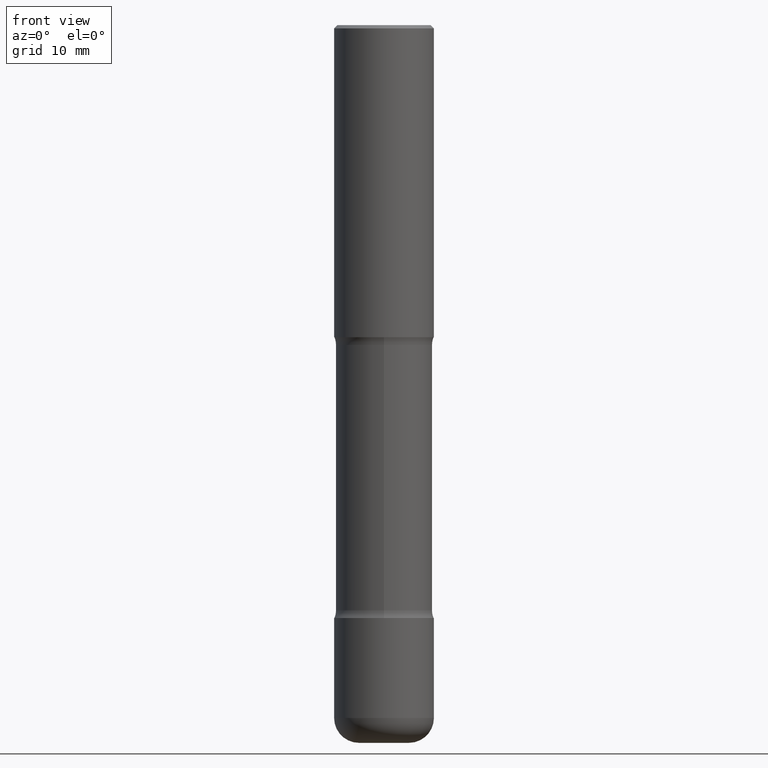
[diagram: clean part render]
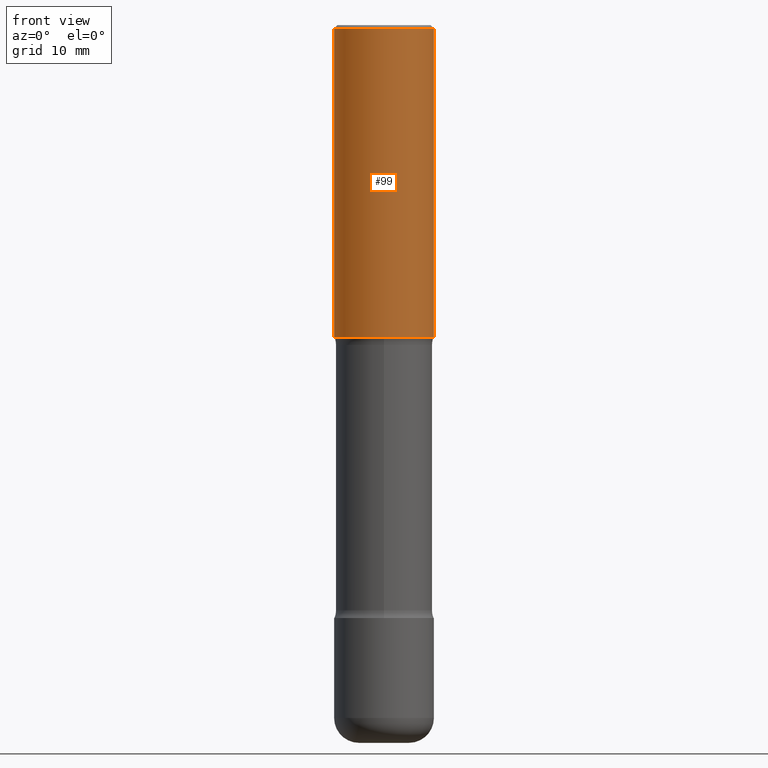
[diagram: same view with one face highlighted and labeled with its STEP entity id]
A machine part, front view. The second image highlights one B-rep face of the part: STEP entity #99.
In plain terms, the highlighted cylindrical surface (partial cylindrical patch) has radius 7.9997 mm, axis along (-0, 0, 1).
Its self-contained STEP definition (entity closure, byte-faithful):
#30 = ORIENTED_EDGE ( 'NONE', *, *, #434, .F. ) ;
#38 = DIRECTION ( 'NONE',  ( 1.000000000000000000, -6.982962677686265922E-15, 0.000000000000000000 ) ) ;
#72 = LINE ( 'NONE', #155, #149 ) ;
#86 = CARTESIAN_POINT ( 'NONE',  ( 0.3149500000000000077, -2.199284095337289871E-15, 1.535751875536930130E-29 ) ) ;
#87 = AXIS2_PLACEMENT_3D ( 'NONE', #423, #337, #476 ) ;
#91 = CARTESIAN_POINT ( 'NONE',  ( 0.3149500000000001743, -9.072265110850023156E-15, -1.968500000000000139 ) ) ;
#99 = ADVANCED_FACE ( 'NONE', ( #545 ), #508, .T. ) ;
#149 = VECTOR ( 'NONE', #201, 39.37007874015748143 ) ;
#155 = CARTESIAN_POINT ( 'NONE',  ( -0.3149500000000000077, 2.237854346276435590E-15, -1.549218606675782676E-29 ) ) ;
#173 = EDGE_LOOP ( 'NONE', ( #352, #262, #459, #30 ) ) ;
#190 = DIRECTION ( 'NONE',  ( -2.445468806185136597E-29, 3.491481338843145583E-15, 1.000000000000000000 ) ) ;
#201 = DIRECTION ( 'NONE',  ( -2.445468806185136877E-29, 3.491481338843145188E-15, 1.000000000000000000 ) ) ;
#250 = AXIS2_PLACEMENT_3D ( 'NONE', #489, #190, #364 ) ;
#253 = VERTEX_POINT ( 'NONE', #91 ) ;
#262 = ORIENTED_EDGE ( 'NONE', *, *, #270, .T. ) ;
#269 = DIRECTION ( 'NONE',  ( -2.445468806185136877E-29, 3.491481338843145188E-15, 1.000000000000000000 ) ) ;
#270 = EDGE_CURVE ( 'NONE', #503, #253, #353, .T. ) ;
#284 = CARTESIAN_POINT ( 'NONE',  ( 0.3149499999999998967, -2.230543471175006266E-15, -0.02000000000000006981 ) ) ;
#297 = VERTEX_POINT ( 'NONE', #284 ) ;
#321 = CIRCLE ( 'NONE', #513, 0.3149499999999998967 ) ;
#331 = VECTOR ( 'NONE', #269, 39.37007874015748143 ) ;
#333 = VERTEX_POINT ( 'NONE', #419 ) ;
#337 = DIRECTION ( 'NONE',  ( -2.445468806185136597E-29, 3.491481338843145583E-15, 1.000000000000000000 ) ) ;
#340 = CARTESIAN_POINT ( 'NONE',  ( 4.890937612370289799E-31, -6.982962677686315028E-17, -0.02000000000000006981 ) ) ;
#352 = ORIENTED_EDGE ( 'NONE', *, *, #401, .F. ) ;
#353 = CIRCLE ( 'NONE', #250, 0.3149500000000001743 ) ;
#364 = DIRECTION ( 'NONE',  ( 1.000000000000000000, -6.982962677686269866E-15, 0.000000000000000000 ) ) ;
#383 = LINE ( 'NONE', #86, #331 ) ;
#401 = EDGE_CURVE ( 'NONE', #503, #333, #72, .T. ) ;
#419 = CARTESIAN_POINT ( 'NONE',  ( -0.3149499999999998967, 2.129454468560425784E-15, -0.02000000000000006981 ) ) ;
#423 = CARTESIAN_POINT ( 'NONE',  ( 0.000000000000000000, 0.000000000000000000, 0.000000000000000000 ) ) ;
#434 = EDGE_CURVE ( 'NONE', #333, #297, #321, .T. ) ;
#459 = ORIENTED_EDGE ( 'NONE', *, *, #470, .T. ) ;
#470 = EDGE_CURVE ( 'NONE', #253, #297, #383, .T. ) ;
#476 = DIRECTION ( 'NONE',  ( 1.000000000000000000, -6.982962677686266711E-15, 4.876176775795936353E-29 ) ) ;
#489 = CARTESIAN_POINT ( 'NONE',  ( 4.813905344975441835E-29, -6.872981015512731707E-15, -1.968500000000000139 ) ) ;
#502 = DIRECTION ( 'NONE',  ( -2.445468806185136597E-29, 3.491481338843145583E-15, 1.000000000000000000 ) ) ;
#503 = VERTEX_POINT ( 'NONE', #509 ) ;
#508 = CYLINDRICAL_SURFACE ( 'NONE', #87, 0.3149500000000000077 ) ;
#509 = CARTESIAN_POINT ( 'NONE',  ( -0.3149500000000001743, -1.233550974868359743E-15, -1.968500000000000139 ) ) ;
#513 = AXIS2_PLACEMENT_3D ( 'NONE', #340, #502, #38 ) ;
#545 = FACE_OUTER_BOUND ( 'NONE', #173, .T. ) ;